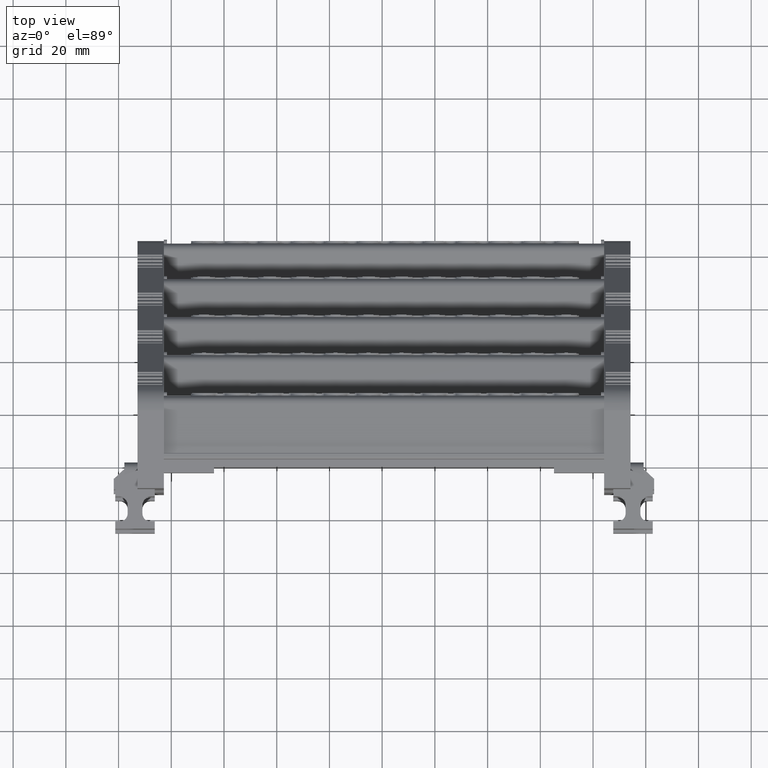
[diagram: clean part render]
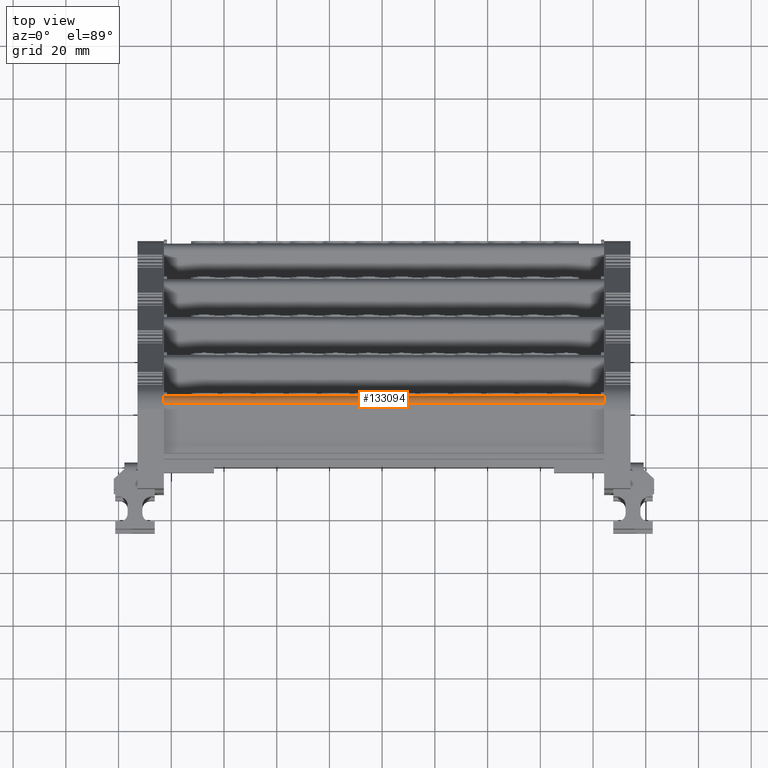
[diagram: same view with one face highlighted and labeled with its STEP entity id]
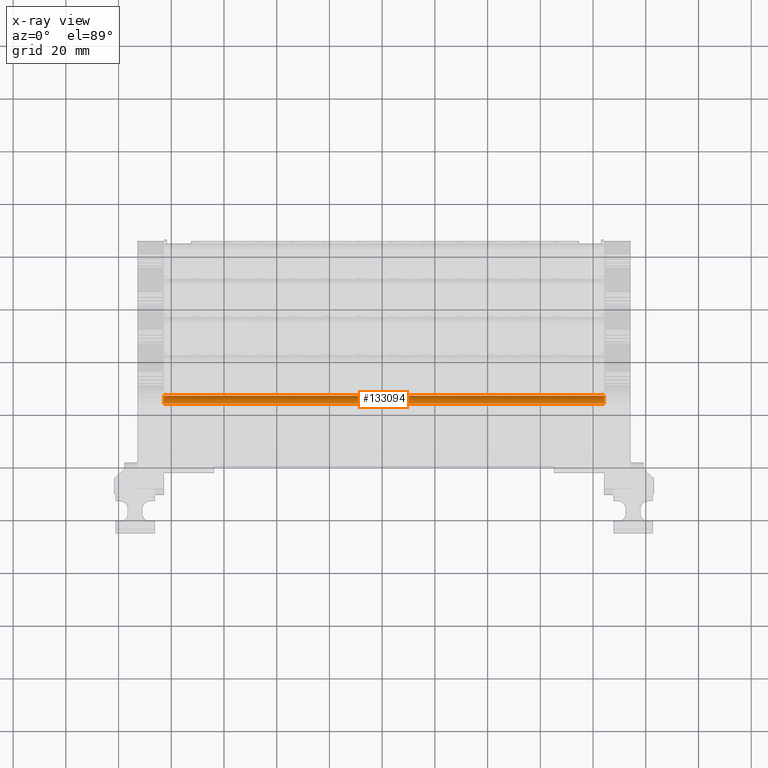
[diagram: x-ray of the same camera — body ghosted, the highlighted face saturated]
A machine part, top view. The second image highlights one B-rep face of the part: STEP entity #133094.
The next image is the same camera in x-ray: the body ghosted, the highlighted face saturated — about 0% of this face is hidden behind the body in this view.
In plain terms, the highlighted cylindrical surface (edge-blend (fillet) strip) has radius 3 mm, axis along (-1, 0, 0).
Its self-contained STEP definition (entity closure, byte-faithful):
#45426 = EDGE_LOOP ( 'NONE', ( #173081, #172790, #173013, #172708 ) ) ;
#56621 = B_SPLINE_CURVE_WITH_KNOTS ( 'NONE', 3,
 ( #124959, #124984, #125008, #124899, #125011, #124993, #124904, #124953, #125047, #124943 ),
 .UNSPECIFIED., .F., .F.,
 ( 4, 2, 2, 2, 4 ),
 ( 0.0000000000000000000, 0.2500000000000000000, 0.5000000000000000000, 0.7500000000000000000, 1.000000000000000000 ),
 .UNSPECIFIED. ) ;
#111015 = AXIS2_PLACEMENT_3D ( 'NONE', #125879, #125876, #125868 ) ;
#123283 = VECTOR ( 'NONE', #163120, 1000.000000000000000 ) ;
#124899 = CARTESIAN_POINT ( 'NONE',  ( 44.19725230226232800, 123.3608979826533100, -275.8339923638421300 ) ) ;
#124904 = CARTESIAN_POINT ( 'NONE',  ( 44.19725230226236300, 124.4494464118318100, -276.9417066163941300 ) ) ;
#124943 = CARTESIAN_POINT ( 'NONE',  ( 44.19725230226229200, 124.8198679839465800, -278.4370734849459300 ) ) ;
#124953 = CARTESIAN_POINT ( 'NONE',  ( 44.19725230226234900, 124.7435322333036000, -277.6605478015372300 ) ) ;
#124959 = CARTESIAN_POINT ( 'NONE',  ( 44.19725230226230700, 121.8722233714273000, -275.4375303675025700 ) ) ;
#124984 = CARTESIAN_POINT ( 'NONE',  ( 44.19725230226232100, 122.2605001413705100, -275.4443075265380100 ) ) ;
#124993 = CARTESIAN_POINT ( 'NONE',  ( 44.19725230226234900, 124.2318070117656500, -276.6113257186746600 ) ) ;
#125008 = CARTESIAN_POINT ( 'NONE',  ( 44.19725230226234900, 122.6472985985550300, -275.5274062603359700 ) ) ;
#125011 = CARTESIAN_POINT ( 'NONE',  ( 44.19725230226234900, 123.6874303669093000, -276.0573643586651000 ) ) ;
#125047 = CARTESIAN_POINT ( 'NONE',  ( 44.19725230226234900, 124.8198679839465500, -278.0487375737014300 ) ) ;
#125856 = FACE_OUTER_BOUND ( 'NONE', #45426, .T. ) ;
#125868 = DIRECTION ( 'NONE',  ( -9.830099697201897900E-015, -1.000000000000000000, 0.0000000000000000000 ) ) ;
#125876 = DIRECTION ( 'NONE',  ( -1.000000000000000000, 9.816221856028667200E-015, 3.853196576899828900E-015 ) ) ;
#125879 = CARTESIAN_POINT ( 'NONE',  ( -12.17442802713228600, 121.8198679839471100, -278.4370734849458100 ) ) ;
#125917 = CYLINDRICAL_SURFACE ( 'NONE', #111015, 3.000000000000002700 ) ;
#133094 = ADVANCED_FACE ( 'NONE', ( #125856 ), #125917, .T. ) ;
#142386 = EDGE_CURVE ( 'NONE', #158936, #152082, #171203, .T. ) ;
#142400 = EDGE_CURVE ( 'NONE', #159262, #152121, #163104, .T. ) ;
#142436 = EDGE_CURVE ( 'NONE', #152082, #152121, #171168, .T. ) ;
#152082 = VERTEX_POINT ( 'NONE', #204591 ) ;
#152121 = VERTEX_POINT ( 'NONE', #204734 ) ;
#158936 = VERTEX_POINT ( 'NONE', #219347 ) ;
#159262 = VERTEX_POINT ( 'NONE', #219687 ) ;
#163064 = CARTESIAN_POINT ( 'NONE',  ( -12.17442802713234900, 121.8722233714272800, -275.4375303675022900 ) ) ;
#163104 = LINE ( 'NONE', #163064, #123283 ) ;
#163120 = DIRECTION ( 'NONE',  ( -1.000000000000000000, 7.022463820333907800E-017, 4.023307635260085000E-015 ) ) ;
#164549 = CARTESIAN_POINT ( 'NONE',  ( -11.46830780753586200, 124.8198679839470900, -278.4370734849457600 ) ) ;
#164583 = CARTESIAN_POINT ( 'NONE',  ( 44.19725230226229200, 124.8198679839465800, -278.4370734849459300 ) ) ;
#164584 = CARTESIAN_POINT ( 'NONE',  ( -67.13386791733408600, 124.8198679839476500, -278.4370734849455300 ) ) ;
#164641 = CARTESIAN_POINT ( 'NONE',  ( -122.7994280271322700, 124.8198679839482100, -278.4370734849453000 ) ) ;
#171168 = B_SPLINE_CURVE_WITH_KNOTS ( 'NONE', 3,
 ( #173993, #173966, #173972, #173955, #173900, #173924, #173927, #173902, #174002, #173868 ),
 .UNSPECIFIED., .F., .F.,
 ( 4, 2, 2, 2, 4 ),
 ( 0.0000000000000000000, 0.2500000000000000000, 0.5000000000000000000, 0.7500000000000000000, 1.000000000000000000 ),
 .UNSPECIFIED. ) ;
#171203 = B_SPLINE_CURVE_WITH_KNOTS ( 'NONE', 3,
 ( #164583, #164549, #164584, #164641 ),
 .UNSPECIFIED., .F., .F.,
 ( 4, 4 ),
 ( 0.0000000000000000000, 1.000000000000000000 ),
 .UNSPECIFIED. ) ;
#172708 = ORIENTED_EDGE ( 'NONE', *, *, #184311, .T. ) ;
#172790 = ORIENTED_EDGE ( 'NONE', *, *, #142436, .T. ) ;
#173013 = ORIENTED_EDGE ( 'NONE', *, *, #142400, .F. ) ;
#173081 = ORIENTED_EDGE ( 'NONE', *, *, #142386, .T. ) ;
#173868 = CARTESIAN_POINT ( 'NONE',  ( -122.7994280271323100, 121.8722233714279100, -275.4375303675018900 ) ) ;
#173900 = CARTESIAN_POINT ( 'NONE',  ( -122.7994280271322900, 124.2318070117671200, -276.6113257186737000 ) ) ;
#173902 = CARTESIAN_POINT ( 'NONE',  ( -122.7994280271322800, 122.6472985985560300, -275.5274062603349400 ) ) ;
#173924 = CARTESIAN_POINT ( 'NONE',  ( -122.7994280271322800, 123.6874303669105300, -276.0573643586641900 ) ) ;
#173927 = CARTESIAN_POINT ( 'NONE',  ( -122.7994280271322900, 123.3608979826545200, -275.8339923638411600 ) ) ;
#173955 = CARTESIAN_POINT ( 'NONE',  ( -122.7994280271322400, 124.4494464118332900, -276.9417066163931100 ) ) ;
#173966 = CARTESIAN_POINT ( 'NONE',  ( -122.7994280271322800, 124.8198679839482000, -278.0487375737005800 ) ) ;
#173972 = CARTESIAN_POINT ( 'NONE',  ( -122.7994280271323100, 124.7435322333052200, -277.6605478015364400 ) ) ;
#173993 = CARTESIAN_POINT ( 'NONE',  ( -122.7994280271322700, 124.8198679839482100, -278.4370734849453000 ) ) ;
#174002 = CARTESIAN_POINT ( 'NONE',  ( -122.7994280271322900, 122.2605001413714400, -275.4443075265372200 ) ) ;
#184311 = EDGE_CURVE ( 'NONE', #159262, #158936, #56621, .T. ) ;
#204591 = CARTESIAN_POINT ( 'NONE',  ( -122.7994280271322700, 124.8198679839482100, -278.4370734849453000 ) ) ;
#204734 = CARTESIAN_POINT ( 'NONE',  ( -122.7994280271323100, 121.8722233714279100, -275.4375303675018900 ) ) ;
#219347 = CARTESIAN_POINT ( 'NONE',  ( 44.19725230226229200, 124.8198679839465800, -278.4370734849459300 ) ) ;
#219687 = CARTESIAN_POINT ( 'NONE',  ( 44.19725230226230700, 121.8722233714273000, -275.4375303675025700 ) ) ;